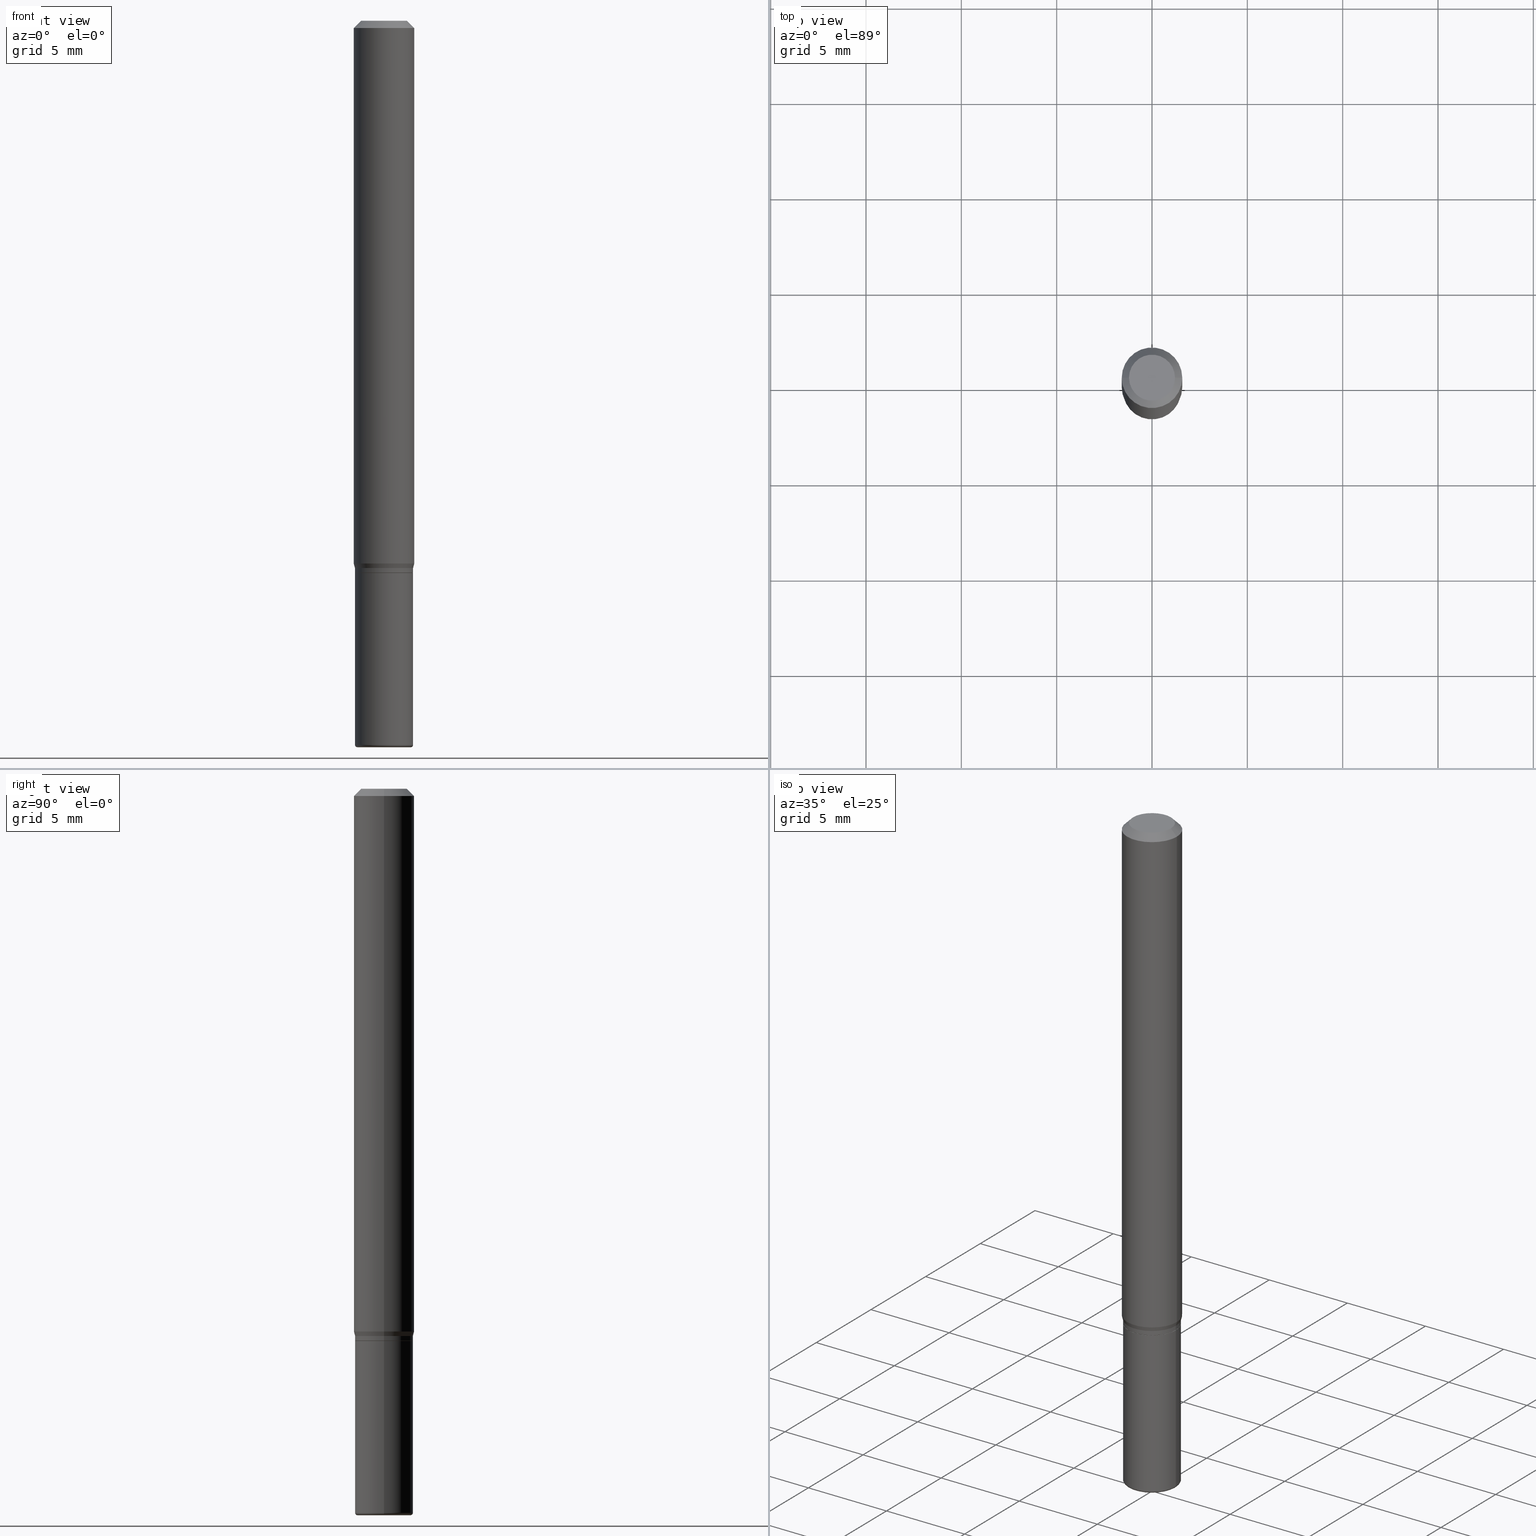
[diagram: canonical four-view strip — front | top / right | iso, engineering-drawing reading convention]
A machine part, canonical four-view strip (front | top / right | iso — engineering-drawing reading convention). The complete STEP part file that produces these views, byte-faithful:
ISO-10303-21;
HEADER;
FILE_DESCRIPTION (( 'STEP AP203' ),
    '1' );
FILE_NAME ('09257.STEP',
    '2024-03-01T00:06:09',
    ( '' ),
    ( '' ),
    'SwSTEP 2.0',
    'SolidWorks 2023',
    '' );
FILE_SCHEMA (( 'CONFIG_CONTROL_DESIGN' ));
ENDSEC;

DATA;
#1 = DIRECTION ( 'NONE',  ( -2.445468806185136597E-29, 3.491481338843145583E-15, 1.000000000000000000 ) ) ;
#2 = AXIS2_PLACEMENT_3D ( 'NONE', #279, #440, #316 ) ;
#3 = TOROIDAL_SURFACE ( 'NONE', #384, 0.05500000000000000028, 0.005000000000000177046 ) ;
#4 = APPROVAL_DATE_TIME ( #89, #401 ) ;
#5 = DIRECTION ( 'NONE',  ( 1.000000000000000000, -6.982962677686265922E-15, 4.876176775795935793E-29 ) ) ;
#6 = ORIENTED_EDGE ( 'NONE', *, *, #229, .F. ) ;
#7 = EDGE_CURVE ( 'NONE', #34, #405, #323, .T. ) ;
#8 = CARTESIAN_POINT ( 'NONE',  ( -0.06000000000000007411, 4.263256414560606381E-16, -2.951361054152947267E-30 ) ) ;
#9 = MANIFOLD_SOLID_BREP ( 'Body-Move/Copy2[1]', #79 ) ;
#10 = CIRCLE ( 'NONE', #514, 0.06250000000000000000 ) ;
#11 = CARTESIAN_POINT ( 'NONE',  ( 0.04750000000000000749, -4.035134999187568762E-16, 2.731847993664288856E-16 ) ) ;
#12 = LOCAL_TIME ( 19, 6, 9.000000000000000000, #445 ) ;
#13 = EDGE_CURVE ( 'NONE', #200, #102, #367, .T. ) ;
#14 = LINE ( 'NONE', #336, #99 ) ;
#15 = EDGE_LOOP ( 'NONE', ( #265, #498 ) ) ;
#16 = CARTESIAN_POINT ( 'NONE',  ( 3.582686580359767159E-29, -5.359686688179454114E-15, -1.500000000000000444 ) ) ;
#17 = EDGE_LOOP ( 'NONE', ( #434, #302, #222, #228 ) ) ;
#18 = DIRECTION ( 'NONE',  ( -1.000000000000000000, 6.982962677686265922E-15, -4.876176775795935793E-29 ) ) ;
#19 = AXIS2_PLACEMENT_3D ( 'NONE', #208, #365, #90 ) ;
#20 = ORIENTED_EDGE ( 'NONE', *, *, #196, .T. ) ;
#21 = LOCAL_TIME ( 19, 6, 9.000000000000000000, #207 ) ;
#22 = EDGE_CURVE ( 'NONE', #405, #383, #194, .T. ) ;
#23 = CARTESIAN_POINT ( 'NONE',  ( 0.05500000000000000028, -5.603827548843247337E-15, -1.495000000000000107 ) ) ;
#24 = ORIENTED_EDGE ( 'NONE', *, *, #423, .T. ) ;
#25 = CARTESIAN_POINT ( 'NONE',  ( 2.786611704647963748E-29, -3.978542985611765194E-15, -1.139500000000000179 ) ) ;
#26 = ORIENTED_EDGE ( 'NONE', *, *, #178, .T. ) ;
#27 = ADVANCED_FACE ( 'NONE', ( #284 ), #239, .T. ) ;
#28 = CARTESIAN_POINT ( 'NONE',  ( 2.787834439051055989E-29, -3.980288726281186698E-15, -1.140000000000000124 ) ) ;
#29 = CARTESIAN_POINT ( 'NONE',  ( 3.655975865246779122E-29, -5.219764601570503141E-15, -1.495000000000000107 ) ) ;
#30 = CIRCLE ( 'NONE', #391, 0.005000000000000177046 ) ;
#31 = AXIS2_PLACEMENT_3D ( 'NONE', #370, #449, #364 ) ;
#32 = SECURITY_CLASSIFICATION ( '', '', #369 ) ;
#33 =( CONVERSION_BASED_UNIT ( 'INCH', #148 ) LENGTH_UNIT ( ) NAMED_UNIT ( #55 ) );
#34 = VERTEX_POINT ( 'NONE', #355 ) ;
#35 = DIRECTION ( 'NONE',  ( 1.000000000000000000, 0.000000000000000000, 0.000000000000000000 ) ) ;
#36 = DIRECTION ( 'NONE',  ( 1.000000000000000000, -6.982962677686268288E-15, 0.000000000000000000 ) ) ;
#37 = DIRECTION ( 'NONE',  ( -2.445468806185136597E-29, 3.491481338843145583E-15, 1.000000000000000000 ) ) ;
#38 = EDGE_LOOP ( 'NONE', ( #362, #84, #119, #282 ) ) ;
#39 = AXIS2_PLACEMENT_3D ( 'NONE', #301, #454, #503 ) ;
#40 = EDGE_CURVE ( 'NONE', #377, #200, #30, .T. ) ;
#41 = CARTESIAN_POINT ( 'NONE',  ( 2.763379750989205565E-29, -3.945373912892755838E-15, -1.130000000000000338 ) ) ;
#42 = SHAPE_DEFINITION_REPRESENTATION ( #292, #379 ) ;
#43 = DIRECTION ( 'NONE',  ( -2.445468806185136597E-29, 3.491481338843145583E-15, 1.000000000000000000 ) ) ;
#44 = EDGE_CURVE ( 'NONE', #102, #347, #398, .T. ) ;
#45 = DIRECTION ( 'NONE',  ( -2.445468806185136877E-29, 3.491481338843145188E-15, 1.000000000000000000 ) ) ;
#46 = ORIENTED_EDGE ( 'NONE', *, *, #408, .F. ) ;
#47 = CIRCLE ( 'NONE', #333, 0.04750000000000000749 ) ;
#48 = APPROVAL_DATE_TIME ( #250, #166 ) ;
#49 = PRODUCT_DEFINITION_FORMATION_WITH_SPECIFIED_SOURCE ( 'ANY', '', #448, .NOT_KNOWN. ) ;
#50 = DIRECTION ( 'NONE',  ( 1.000000000000000000, -6.982962677686262766E-15, 0.000000000000000000 ) ) ;
#51 = PERSON_AND_ORGANIZATION ( #173, #126 ) ;
#52 = DIRECTION ( 'NONE',  ( 1.000000000000000000, -6.982962677686265133E-15, 0.000000000000000000 ) ) ;
#53 = APPROVAL_ROLE ( '' ) ;
#54 = FACE_OUTER_BOUND ( 'NONE', #139, .T. ) ;
#55 = DIMENSIONAL_EXPONENTS ( 1.000000000000000000, 0.000000000000000000, 0.000000000000000000, 0.000000000000000000, 0.000000000000000000, 0.000000000000000000, 0.000000000000000000 ) ;
#56 = CARTESIAN_POINT ( 'NONE',  ( 0.05950000000000009448, -4.395775005603519536E-15, -1.140000000000000124 ) ) ;
#57 = CC_DESIGN_PERSON_AND_ORGANIZATION_ASSIGNMENT ( #51, #162, ( #49 ) ) ;
#58 = DIRECTION ( 'NONE',  ( 1.000000000000000000, -6.982962677686266711E-15, 0.000000000000000000 ) ) ;
#59 = ORIENTED_EDGE ( 'NONE', *, *, #204, .F. ) ;
#60 = DIRECTION ( 'NONE',  ( -1.000000000000000000, 6.982962677686266711E-15, 0.000000000000000000 ) ) ;
#61 = EDGE_CURVE ( 'NONE', #102, #200, #165, .T. ) ;
#62 = EDGE_LOOP ( 'NONE', ( #400, #66, #237, #314 ) ) ;
#63 = CARTESIAN_POINT ( 'NONE',  ( -0.05499999999999999334, -4.819931231855553084E-15, -1.500000000000000444 ) ) ;
#64 = CIRCLE ( 'NONE', #201, 0.06000000000000009492 ) ;
#65 = CC_DESIGN_SECURITY_CLASSIFICATION ( #32, ( #49 ) ) ;
#66 = ORIENTED_EDGE ( 'NONE', *, *, #356, .T. ) ;
#67 = EDGE_CURVE ( 'NONE', #487, #460, #456, .T. ) ;
#68 = CC_DESIGN_APPROVAL ( #197, ( #49 ) ) ;
#69 = DIRECTION ( 'NONE',  ( -2.445468806185136597E-29, 3.491481338843145583E-15, 1.000000000000000000 ) ) ;
#70 = ORIENTED_EDGE ( 'NONE', *, *, #44, .T. ) ;
#71 = DIRECTION ( 'NONE',  ( 1.000000000000000000, -6.982962677686266711E-15, 4.876176775795936353E-29 ) ) ;
#72 = DIRECTION ( 'NONE',  ( -1.000000000000000000, 7.105427357601061812E-15, 0.000000000000000000 ) ) ;
#73 = DESIGN_CONTEXT ( 'detailed design', #249, 'design' ) ;
#74 = EDGE_CURVE ( 'NONE', #347, #107, #348, .T. ) ;
#75 = CARTESIAN_POINT ( 'NONE',  ( 0.000000000000000000, 0.000000000000000000, 0.000000000000000000 ) ) ;
#76 = PRODUCT_RELATED_PRODUCT_CATEGORY ( 'detail', '', ( #448 ) ) ;
#77 = ORIENTED_EDGE ( 'NONE', *, *, #22, .F. ) ;
#78 = AXIS2_PLACEMENT_3D ( 'NONE', #114, #435, #36 ) ;
#79 = CLOSED_SHELL ( 'NONE', ( #289, #220, #293, #169, #267, #350 ) ) ;
#80 = CARTESIAN_POINT ( 'NONE',  ( 0.05950000000000009448, -4.395775005603519536E-15, -1.140000000000000124 ) ) ;
#81 = VERTEX_POINT ( 'NONE', #198 ) ;
#82 =( NAMED_UNIT ( * ) PLANE_ANGLE_UNIT ( ) SI_UNIT ( $, .RADIAN. ) );
#83 = DIRECTION ( 'NONE',  ( -2.445468806185136877E-29, 3.491481338843145188E-15, 1.000000000000000000 ) ) ;
#84 = ORIENTED_EDGE ( 'NONE', *, *, #450, .T. ) ;
#85 = CC_DESIGN_PERSON_AND_ORGANIZATION_ASSIGNMENT ( #130, #214, ( #246 ) ) ;
#86 = CIRCLE ( 'NONE', #393, 0.04750000000000000749 ) ;
#87 = DATE_TIME_ROLE ( 'creation_date' ) ;
#88 = DIRECTION ( 'NONE',  ( 2.438088387897960049E-29, -3.491481338843145188E-15, -1.000000000000000000 ) ) ;
#89 = DATE_AND_TIME ( #447, #101 ) ;
#90 = DIRECTION ( 'NONE',  ( 1.000000000000000000, -6.982962677686265922E-15, 4.876176775795935793E-29 ) ) ;
#91 = CARTESIAN_POINT ( 'NONE',  ( 2.740563216406686834E-29, -3.912797948517154069E-15, -1.120669872981078452 ) ) ;
#92 = ORIENTED_EDGE ( 'NONE', *, *, #7, .F. ) ;
#93 = AXIS2_PLACEMENT_3D ( 'NONE', #304, #270, #307 ) ;
#94 = CONICAL_SURFACE ( 'NONE', #375, 0.06000000000000006717, 0.2617993877991523499 ) ;
#95 = DIRECTION ( 'NONE',  ( -2.445468806185136597E-29, 3.491481338843145583E-15, 1.000000000000000000 ) ) ;
#96 = DIRECTION ( 'NONE',  ( 1.000000000000000000, -6.982962677686263555E-15, 4.883557194083111780E-29 ) ) ;
#97 = DIRECTION ( 'NONE',  ( -2.445468806185136597E-29, 3.491481338843145583E-15, 1.000000000000000000 ) ) ;
#98 = AXIS2_PLACEMENT_3D ( 'NONE', #473, #153, #116 ) ;
#99 = VECTOR ( 'NONE', #138, 39.37007874015748143 ) ;
#100 = CARTESIAN_POINT ( 'NONE',  ( -0.06000000000000006717, -3.493878505051893006E-15, -1.130000000000000338 ) ) ;
#101 = LOCAL_TIME ( 19, 6, 9.000000000000000000, #132 ) ;
#102 = VERTEX_POINT ( 'NONE', #157 ) ;
#103 = EDGE_CURVE ( 'NONE', #396, #509, #321, .T. ) ;
#104 = DIRECTION ( 'NONE',  ( 1.000000000000000000, -6.982962677686265922E-15, 4.876176775795935793E-29 ) ) ;
#105 = ORIENTED_EDGE ( 'NONE', *, *, #340, .F. ) ;
#106 = DIRECTION ( 'NONE',  ( -2.445468806185136597E-29, 3.491481338843145583E-15, 1.000000000000000000 ) ) ;
#107 = VERTEX_POINT ( 'NONE', #129 ) ;
#108 = DIRECTION ( 'NONE',  ( 2.445468806185136597E-29, -3.491481338843145583E-15, -1.000000000000000000 ) ) ;
#109 = VECTOR ( 'NONE', #218, 39.37007874015748143 ) ;
#110 = ORIENTED_EDGE ( 'NONE', *, *, #274, .F. ) ;
#111 = DIRECTION ( 'NONE',  ( 1.000000000000000000, -6.982962677686265133E-15, 0.000000000000000000 ) ) ;
#112 = ORIENTED_EDGE ( 'NONE', *, *, #463, .T. ) ;
#113 = APPLICATION_CONTEXT ( 'configuration controlled 3d designs of mechanical parts and assemblies' ) ;
#114 = CARTESIAN_POINT ( 'NONE',  ( 2.787834439051055989E-29, -3.980288726281186698E-15, -1.140000000000000124 ) ) ;
#115 = FACE_OUTER_BOUND ( 'NONE', #479, .T. ) ;
#116 = DIRECTION ( 'NONE',  ( 1.000000000000000000, -6.982962677686263555E-15, 0.000000000000000000 ) ) ;
#117 = CLOSED_SHELL ( 'NONE', ( #27, #260, #372, #233, #488, #135, #471, #495, #140, #300, #283, #508 ) ) ;
#118 = AXIS2_PLACEMENT_3D ( 'NONE', #472, #313, #111 ) ;
#119 = ORIENTED_EDGE ( 'NONE', *, *, #418, .T. ) ;
#120 = DIRECTION ( 'NONE',  ( -0.7071067811865479058, 2.468850131082261005E-15, -0.7071067811865471286 ) ) ;
#121 = CC_DESIGN_PERSON_AND_ORGANIZATION_ASSIGNMENT ( #354, #238, ( #448 ) ) ;
#122 = ORIENTED_EDGE ( 'NONE', *, *, #408, .T. ) ;
#123 = PERSON_AND_ORGANIZATION ( #173, #126 ) ;
#124 = DIRECTION ( 'NONE',  ( 7.105427357601001859E-15, 1.000000000000000000, -3.491481338843145583E-15 ) ) ;
#125 = VECTOR ( 'NONE', #45, 39.37007874015748143 ) ;
#126 = ORGANIZATION ( 'UNSPECIFIED', 'UNSPECIFIED', '' ) ;
#127 = AXIS2_PLACEMENT_3D ( 'NONE', #29, #161, #443 ) ;
#128 = APPROVAL_DATE_TIME ( #160, #197 ) ;
#129 = CARTESIAN_POINT ( 'NONE',  ( -0.05999999999999999778, -4.173701022469784429E-15, -1.140000000000000124 ) ) ;
#130 = PERSON_AND_ORGANIZATION ( #173, #126 ) ;
#131 = DIRECTION ( 'NONE',  ( 1.000000000000000000, -6.982962677686263555E-15, 0.000000000000000000 ) ) ;
#132 = COORDINATED_UNIVERSAL_TIME_OFFSET ( 5, 0, .BEHIND. ) ;
#133 = LINE ( 'NONE', #484, #125 ) ;
#134 = CALENDAR_DATE ( 2024, 29, 2 ) ;
#135 = ADVANCED_FACE ( 'NONE', ( #54 ), #422, .T. ) ;
#136 = FACE_OUTER_BOUND ( 'NONE', #186, .T. ) ;
#137 = CARTESIAN_POINT ( 'NONE',  ( 3.668203209277706016E-29, -5.237222008264719754E-15, -1.500000000000000444 ) ) ;
#138 = DIRECTION ( 'NONE',  ( -2.445468806185136877E-29, 3.491481338843145188E-15, 1.000000000000000000 ) ) ;
#139 = EDGE_LOOP ( 'NONE', ( #46, #20, #308, #411 ) ) ;
#140 = ADVANCED_FACE ( 'NONE', ( #295 ), #420, .F. ) ;
#141 = CIRCLE ( 'NONE', #209, 0.06250000000000000000 ) ;
#142 = CARTESIAN_POINT ( 'NONE',  ( -0.06250000000000000000, 3.840629472727455270E-16, -0.01499999999999970281 ) ) ;
#143 = ORIENTED_EDGE ( 'NONE', *, *, #340, .T. ) ;
#144 = PLANE ( 'NONE',  #39 ) ;
#145 = ORIENTED_EDGE ( 'NONE', *, *, #438, .T. ) ;
#146 = CARTESIAN_POINT ( 'NONE',  ( 3.668203209277632395E-31, -5.237222008264614861E-17, -0.01499999999999970281 ) ) ;
#147 = ORIENTED_EDGE ( 'NONE', *, *, #450, .F. ) ;
#148 = LENGTH_MEASURE_WITH_UNIT ( LENGTH_MEASURE( 0.02539999999999999897 ), #441 );
#149 = VECTOR ( 'NONE', #170, 39.37007874015748143 ) ;
#150 = ORIENTED_EDGE ( 'NONE', *, *, #380, .F. ) ;
#151 = VECTOR ( 'NONE', #195, 39.37007874015748143 ) ;
#152 = CARTESIAN_POINT ( 'NONE',  ( 0.06250000000000000000, -4.888073874380378612E-16, -0.01499999999999970281 ) ) ;
#153 = DIRECTION ( 'NONE',  ( -2.445468806185136597E-29, 3.491481338843145583E-15, 1.000000000000000000 ) ) ;
#154 = LINE ( 'NONE', #506, #192 ) ;
#155 = DIRECTION ( 'NONE',  ( 1.000000000000000000, -6.982962677686268288E-15, 0.000000000000000000 ) ) ;
#156 = APPLICATION_PROTOCOL_DEFINITION ( 'international standard', 'config_control_design', 1994, #113 ) ;
#157 = CARTESIAN_POINT ( 'NONE',  ( 0.06000000000000017819, -5.638742362231680564E-15, -1.495000000000000107 ) ) ;
#158 = CYLINDRICAL_SURFACE ( 'NONE', #286, 0.06250000000000000000 ) ;
#159 = ORIENTED_EDGE ( 'NONE', *, *, #61, .T. ) ;
#160 = DATE_AND_TIME ( #409, #242 ) ;
#161 = DIRECTION ( 'NONE',  ( -2.445468806185136597E-29, 3.491481338843145583E-15, 1.000000000000000000 ) ) ;
#162 = PERSON_AND_ORGANIZATION_ROLE ( 'design_supplier' ) ;
#163 = CYLINDRICAL_SURFACE ( 'NONE', #457, 0.06000000000000009492 ) ;
#164 = EDGE_CURVE ( 'NONE', #275, #219, #86, .T. ) ;
#165 = CIRCLE ( 'NONE', #98, 0.06000000000000017819 ) ;
#166 = APPROVAL ( #363, 'UNSPECIFIED' ) ;
#167 = PERSON_AND_ORGANIZATION ( #173, #126 ) ;
#168 = DIRECTION ( 'NONE',  ( -2.445468806185136597E-29, 3.491481338843145583E-15, 1.000000000000000000 ) ) ;
#169 = ADVANCED_FACE ( 'NONE', ( #486 ), #163, .T. ) ;
#170 = DIRECTION ( 'NONE',  ( -2.445468806185136877E-29, 3.491481338843145188E-15, 1.000000000000000000 ) ) ;
#171 = APPROVAL_STATUS ( 'not_yet_approved' ) ;
#172 = DIRECTION ( 'NONE',  ( 1.000000000000000000, -6.982962677686263555E-15, 0.000000000000000000 ) ) ;
#173 = PERSON ( 'UNSPECIFIED', 'UNSPECIFIED', 'UNSPECIFIED', ('UNSPECIFIED'), ('UNSPECIFIED'), ('UNSPECIFIED') ) ;
#174 = VECTOR ( 'NONE', #180, 39.37007874015748143 ) ;
#175 = CC_DESIGN_APPROVAL ( #401, ( #246 ) ) ;
#176 = DIRECTION ( 'NONE',  ( 1.000000000000000000, -6.982962677686262766E-15, 0.000000000000000000 ) ) ;
#177 = PLANE ( 'NONE',  #402 ) ;
#178 = EDGE_CURVE ( 'NONE', #396, #464, #10, .T. ) ;
#179 = EDGE_LOOP ( 'NONE', ( #381, #432, #240, #150 ) ) ;
#180 = DIRECTION ( 'NONE',  ( 0.7071067811866199593, -2.468850131083015945E-15, 0.7071067811864750752 ) ) ;
#181 = ORIENTED_EDGE ( 'NONE', *, *, #103, .F. ) ;
#182 = AXIS2_PLACEMENT_3D ( 'NONE', #288, #373, #176 ) ;
#183 = DIRECTION ( 'NONE',  ( -2.445468806185136597E-29, 3.491481338843145583E-15, 1.000000000000000000 ) ) ;
#184 = ORIENTED_EDGE ( 'NONE', *, *, #13, .T. ) ;
#185 = CARTESIAN_POINT ( 'NONE',  ( 4.189777606612038494E-16, 0.05999999999999602179, -1.140000000000000346 ) ) ;
#186 = EDGE_LOOP ( 'NONE', ( #159, #305, #425, #203 ) ) ;
#187 = EDGE_CURVE ( 'NONE', #34, #280, #374, .T. ) ;
#188 = CARTESIAN_POINT ( 'NONE',  ( -0.06000000000000006717, -3.519048271436695347E-15, -1.130000000000000338 ) ) ;
#189 = ORIENTED_EDGE ( 'NONE', *, *, #187, .T. ) ;
#190 = FACE_OUTER_BOUND ( 'NONE', #461, .T. ) ;
#191 = AXIS2_PLACEMENT_3D ( 'NONE', #332, #255, #211 ) ;
#192 = VECTOR ( 'NONE', #281, 39.37007874015748143 ) ;
#193 = DIRECTION ( 'NONE',  ( -2.445468806185136877E-29, 3.491481338843145188E-15, 1.000000000000000000 ) ) ;
#194 = CIRCLE ( 'NONE', #261, 0.06000000000000006717 ) ;
#195 = DIRECTION ( 'NONE',  ( -2.445468806185136877E-29, 3.491481338843145188E-15, 1.000000000000000000 ) ) ;
#196 = EDGE_CURVE ( 'NONE', #383, #405, #366, .T. ) ;
#197 = APPROVAL ( #171, 'UNSPECIFIED' ) ;
#198 = CARTESIAN_POINT ( 'NONE',  ( -0.06250000000000000000, -1.538495874449837169E-15, -0.01499999999999970281 ) ) ;
#199 = DIRECTION ( 'NONE',  ( 1.000000000000000000, -6.982962677686268288E-15, 0.000000000000000000 ) ) ;
#200 = VERTEX_POINT ( 'NONE', #489 ) ;
#201 = AXIS2_PLACEMENT_3D ( 'NONE', #25, #262, #493 ) ;
#202 = LINE ( 'NONE', #403, #466 ) ;
#203 = ORIENTED_EDGE ( 'NONE', *, *, #44, .F. ) ;
#204 = EDGE_CURVE ( 'NONE', #200, #107, #133, .T. ) ;
#205 = APPLICATION_PROTOCOL_DEFINITION ( 'international standard', 'config_control_design', 1994, #249 ) ;
#206 = CARTESIAN_POINT ( 'NONE',  ( -0.04750000000000000749, 3.578768372314221353E-16, 2.731847993664239060E-16 ) ) ;
#207 = COORDINATED_UNIVERSAL_TIME_OFFSET ( 5, 0, .BEHIND. ) ;
#208 = CARTESIAN_POINT ( 'NONE',  ( 0.000000000000000000, 0.000000000000000000, 0.000000000000000000 ) ) ;
#209 = AXIS2_PLACEMENT_3D ( 'NONE', #382, #69, #221 ) ;
#210 = DATE_TIME_ROLE ( 'classification_date' ) ;
#211 = DIRECTION ( 'NONE',  ( 1.000000000000000000, -6.982962677686273810E-15, 0.000000000000000000 ) ) ;
#212 = ORIENTED_EDGE ( 'NONE', *, *, #274, .T. ) ;
#213 = EDGE_CURVE ( 'NONE', #464, #396, #226, .T. ) ;
#214 = PERSON_AND_ORGANIZATION_ROLE ( 'creator' ) ;
#215 = CARTESIAN_POINT ( 'NONE',  ( 3.316907271900976589E-16, 0.04750000000000000749, -2.925296391183627249E-17 ) ) ;
#216 = DIRECTION ( 'NONE',  ( -1.000000000000000000, 6.982962677686265922E-15, -4.876176775795935793E-29 ) ) ;
#217 = TOROIDAL_SURFACE ( 'NONE', #93, 0.05500000000000000028, 0.005000000000000177046 ) ;
#218 = DIRECTION ( 'NONE',  ( -0.7071067811866199593, 7.493145998870616062E-15, 0.7071067811864750752 ) ) ;
#219 = VERTEX_POINT ( 'NONE', #11 ) ;
#220 = ADVANCED_FACE ( 'NONE', ( #136 ), #451, .T. ) ;
#221 = DIRECTION ( 'NONE',  ( 1.000000000000000000, -6.982962677686266711E-15, 0.000000000000000000 ) ) ;
#222 = ORIENTED_EDGE ( 'NONE', *, *, #61, .F. ) ;
#223 = LINE ( 'NONE', #378, #109 ) ;
#224 = EDGE_LOOP ( 'NONE', ( #6, #345, #429, #339 ) ) ;
#225 = AXIS2_PLACEMENT_3D ( 'NONE', #256, #43, #172 ) ;
#226 = CIRCLE ( 'NONE', #182, 0.06250000000000000000 ) ;
#227 = CARTESIAN_POINT ( 'NONE',  ( 0.06000000000000006717, -4.364351673553932471E-15, -1.130000000000000338 ) ) ;
#228 = ORIENTED_EDGE ( 'NONE', *, *, #329, .F. ) ;
#229 = EDGE_CURVE ( 'NONE', #280, #383, #491, .T. ) ;
#230 = DIRECTION ( 'NONE',  ( 1.000000000000000000, -6.982962677686280121E-15, 0.000000000000000000 ) ) ;
#231 = ORIENTED_EDGE ( 'NONE', *, *, #380, .T. ) ;
#232 = DIRECTION ( 'NONE',  ( -2.445468806185136597E-29, 3.491481338843145583E-15, 1.000000000000000000 ) ) ;
#233 = ADVANCED_FACE ( 'NONE', ( #245 ), #492, .T. ) ;
#234 = AXIS2_PLACEMENT_3D ( 'NONE', #137, #330, #131 ) ;
#235 = APPROVAL_PERSON_ORGANIZATION ( #123, #197, #53 ) ;
#236 = ORIENTED_EDGE ( 'NONE', *, *, #517, .T. ) ;
#237 = ORIENTED_EDGE ( 'NONE', *, *, #187, .F. ) ;
#238 = PERSON_AND_ORGANIZATION_ROLE ( 'design_owner' ) ;
#239 = CYLINDRICAL_SURFACE ( 'NONE', #258, 0.06000000000000007411 ) ;
#240 = ORIENTED_EDGE ( 'NONE', *, *, #103, .T. ) ;
#241 = CIRCLE ( 'NONE', #414, 0.05999999999999999778 ) ;
#242 = LOCAL_TIME ( 19, 6, 9.000000000000000000, #406 ) ;
#243 = CALENDAR_DATE ( 2024, 29, 2 ) ;
#244 = CC_DESIGN_PERSON_AND_ORGANIZATION_ASSIGNMENT ( #167, #290, ( #49 ) ) ;
#245 = FACE_OUTER_BOUND ( 'NONE', #502, .T. ) ;
#246 = PRODUCT_DEFINITION ( 'UNKNOWN', '', #49, #73 ) ;
#247 = APPROVAL_ROLE ( '' ) ;
#248 = CARTESIAN_POINT ( 'NONE',  ( 2.763379750989205565E-29, -3.945373912892755838E-15, -1.130000000000000338 ) ) ;
#249 = APPLICATION_CONTEXT ( 'configuration controlled 3d designs of mechanical parts and assemblies' ) ;
#250 = DATE_AND_TIME ( #243, #12 ) ;
#251 = EDGE_CURVE ( 'NONE', #324, #377, #430, .T. ) ;
#252 = CARTESIAN_POINT ( 'NONE',  ( 2.787834439051055989E-29, -3.980288726281186698E-15, -1.140000000000000124 ) ) ;
#253 = AXIS2_PLACEMENT_3D ( 'NONE', #185, #462, #18 ) ;
#254 = AXIS2_PLACEMENT_3D ( 'NONE', #469, #319, #358 ) ;
#255 = DIRECTION ( 'NONE',  ( -2.445468806185136597E-29, 3.491481338843145583E-15, 1.000000000000000000 ) ) ;
#256 = CARTESIAN_POINT ( 'NONE',  ( 3.668203209277706016E-29, -5.237222008264719754E-15, -1.500000000000000444 ) ) ;
#257 = LINE ( 'NONE', #56, #174 ) ;
#258 = AXIS2_PLACEMENT_3D ( 'NONE', #470, #318, #351 ) ;
#259 = AXIS2_PLACEMENT_3D ( 'NONE', #455, #108, #60 ) ;
#260 = ADVANCED_FACE ( 'NONE', ( #291 ), #311, .T. ) ;
#261 = AXIS2_PLACEMENT_3D ( 'NONE', #41, #232, #155 ) ;
#262 = DIRECTION ( 'NONE',  ( -2.445468806185136597E-29, 3.491481338843145583E-15, 1.000000000000000000 ) ) ;
#263 = ORIENTED_EDGE ( 'NONE', *, *, #164, .F. ) ;
#264 = FACE_OUTER_BOUND ( 'NONE', #507, .T. ) ;
#265 = ORIENTED_EDGE ( 'NONE', *, *, #164, .T. ) ;
#266 = PLANE ( 'NONE',  #253 ) ;
#267 = ADVANCED_FACE ( 'NONE', ( #371 ), #3, .T. ) ;
#268 = EDGE_LOOP ( 'NONE', ( #468, #236, #143, #494 ) ) ;
#269 = AXIS2_PLACEMENT_3D ( 'NONE', #215, #88, #216 ) ;
#270 = DIRECTION ( 'NONE',  ( -2.445468806185136597E-29, 3.491481338843145583E-15, 1.000000000000000000 ) ) ;
#271 = ORIENTED_EDGE ( 'NONE', *, *, #67, .F. ) ;
#272 = FACE_OUTER_BOUND ( 'NONE', #224, .T. ) ;
#273 = ORIENTED_EDGE ( 'NONE', *, *, #13, .F. ) ;
#274 = EDGE_CURVE ( 'NONE', #377, #324, #296, .T. ) ;
#275 = VERTEX_POINT ( 'NONE', #206 ) ;
#276 = CC_DESIGN_DATE_AND_TIME_ASSIGNMENT ( #297, #87, ( #246 ) ) ;
#277 = FACE_OUTER_BOUND ( 'NONE', #179, .T. ) ;
#278 = CONICAL_SURFACE ( 'NONE', #259, 0.06250000000000000000, 0.7853981633974488341 ) ;
#279 = CARTESIAN_POINT ( 'NONE',  ( 2.787834439051055989E-29, -3.980288726281186698E-15, -1.140000000000000124 ) ) ;
#280 = VERTEX_POINT ( 'NONE', #459 ) ;
#281 = DIRECTION ( 'NONE',  ( 0.7071067811865479058, -7.319954787623257623E-15, -0.7071067811865471286 ) ) ;
#282 = ORIENTED_EDGE ( 'NONE', *, *, #306, .F. ) ;
#283 = ADVANCED_FACE ( 'NONE', ( #431 ), #436, .T. ) ;
#284 = FACE_OUTER_BOUND ( 'NONE', #512, .T. ) ;
#285 = AXIS2_PLACEMENT_3D ( 'NONE', #23, #501, #230 ) ;
#286 = AXIS2_PLACEMENT_3D ( 'NONE', #75, #37, #476 ) ;
#287 = DATE_AND_TIME ( #416, #21 ) ;
#288 = CARTESIAN_POINT ( 'NONE',  ( 2.740563216406686834E-29, -3.912797948517154069E-15, -1.120669872981078452 ) ) ;
#289 = ADVANCED_FACE ( 'NONE', ( #344 ), #217, .T. ) ;
#290 = PERSON_AND_ORGANIZATION_ROLE ( 'creator' ) ;
#291 = FACE_OUTER_BOUND ( 'NONE', #62, .T. ) ;
#292 = PRODUCT_DEFINITION_SHAPE ( 'NONE', 'NONE',  #246 ) ;
#293 = ADVANCED_FACE ( 'NONE', ( #426 ), #266, .F. ) ;
#294 = PERSON_AND_ORGANIZATION_ROLE ( 'classification_officer' ) ;
#295 = FACE_OUTER_BOUND ( 'NONE', #15, .T. ) ;
#296 = CIRCLE ( 'NONE', #225, 0.05499999999999999334 ) ;
#297 = DATE_AND_TIME ( #134, #437 ) ;
#298 = CARTESIAN_POINT ( 'NONE',  ( 3.655975865246779122E-29, -5.219764601570503141E-15, -1.495000000000000107 ) ) ;
#299 = DIRECTION ( 'NONE',  ( -0.2588190451025235705, 5.211531920934563664E-15, 0.9659258262890674240 ) ) ;
#300 = ADVANCED_FACE ( 'NONE', ( #264 ), #144, .F. ) ;
#301 = CARTESIAN_POINT ( 'NONE',  ( 2.787834439051055989E-29, -3.980288726281186698E-15, -1.140000000000000124 ) ) ;
#302 = ORIENTED_EDGE ( 'NONE', *, *, #40, .T. ) ;
#303 = CIRCLE ( 'NONE', #285, 0.005000000000000177046 ) ;
#304 = CARTESIAN_POINT ( 'NONE',  ( 3.655975865246779122E-29, -5.219764601570503141E-15, -1.495000000000000107 ) ) ;
#305 = ORIENTED_EDGE ( 'NONE', *, *, #204, .T. ) ;
#306 = EDGE_CURVE ( 'NONE', #280, #34, #64, .T. ) ;
#307 = DIRECTION ( 'NONE',  ( 1.000000000000000000, -6.982962677686263555E-15, 4.883557194083111780E-29 ) ) ;
#308 = ORIENTED_EDGE ( 'NONE', *, *, #480, .T. ) ;
#309 = FACE_OUTER_BOUND ( 'NONE', #343, .T. ) ;
#310 = ORIENTED_EDGE ( 'NONE', *, *, #251, .F. ) ;
#311 = CONICAL_SURFACE ( 'NONE', #505, 0.05950000000000009448, 0.7853981633975507526 ) ;
#312 = CONICAL_SURFACE ( 'NONE', #254, 0.06250000000000000000, 0.7853981633974488341 ) ;
#313 = DIRECTION ( 'NONE',  ( -2.445468806185136597E-29, 3.491481338843145583E-15, 1.000000000000000000 ) ) ;
#314 = ORIENTED_EDGE ( 'NONE', *, *, #418, .F. ) ;
#315 = DIRECTION ( 'NONE',  ( -2.445468806185136597E-29, 3.491481338843145583E-15, 1.000000000000000000 ) ) ;
#316 = DIRECTION ( 'NONE',  ( 1.000000000000000000, -6.982962677686265133E-15, 0.000000000000000000 ) ) ;
#317 = CARTESIAN_POINT ( 'NONE',  ( 0.000000000000000000, 0.000000000000000000, 0.000000000000000000 ) ) ;
#318 = DIRECTION ( 'NONE',  ( -2.445468806185136597E-29, 3.491481338843145583E-15, 1.000000000000000000 ) ) ;
#319 = DIRECTION ( 'NONE',  ( 2.445468806185136597E-29, -3.491481338843145583E-15, -1.000000000000000000 ) ) ;
#320 = AXIS2_PLACEMENT_3D ( 'NONE', #515, #395, #71 ) ;
#321 = LINE ( 'NONE', #477, #452 ) ;
#322 =( NAMED_UNIT ( * ) SI_UNIT ( $, .STERADIAN. ) SOLID_ANGLE_UNIT ( ) );
#323 = LINE ( 'NONE', #478, #151 ) ;
#324 = VERTEX_POINT ( 'NONE', #376 ) ;
#325 = PERSON_AND_ORGANIZATION ( #173, #126 ) ;
#326 = VECTOR ( 'NONE', #193, 39.37007874015748143 ) ;
#327 = DIRECTION ( 'NONE',  ( 1.000000000000000000, -6.982962677686266711E-15, 4.852736867747365086E-29 ) ) ;
#328 = VECTOR ( 'NONE', #299, 39.37007874015748143 ) ;
#329 = EDGE_CURVE ( 'NONE', #324, #102, #303, .T. ) ;
#330 = DIRECTION ( 'NONE',  ( -2.445468806185136597E-29, 3.491481338843145583E-15, 1.000000000000000000 ) ) ;
#331 = DIRECTION ( 'NONE',  ( 1.000000000000000000, -6.982962677686268288E-15, 0.000000000000000000 ) ) ;
#332 = CARTESIAN_POINT ( 'NONE',  ( 2.786611704647963748E-29, -3.978542985611765194E-15, -1.139500000000000179 ) ) ;
#333 = AXIS2_PLACEMENT_3D ( 'NONE', #388, #183, #346 ) ;
#334 = CC_DESIGN_APPROVAL ( #166, ( #32 ) ) ;
#335 = DIRECTION ( 'NONE',  ( -2.445468806185136597E-29, 3.491481338843145583E-15, 1.000000000000000000 ) ) ;
#336 = CARTESIAN_POINT ( 'NONE',  ( -0.06250000000000000000, 4.440892098500626162E-16, -3.074334431409316114E-30 ) ) ;
#337 = EDGE_LOOP ( 'NONE', ( #427, #112 ) ) ;
#338 = LINE ( 'NONE', #142, #341 ) ;
#339 = ORIENTED_EDGE ( 'NONE', *, *, #196, .F. ) ;
#340 = EDGE_CURVE ( 'NONE', #509, #81, #481, .T. ) ;
#341 = VECTOR ( 'NONE', #120, 39.37007874015748143 ) ;
#342 = CARTESIAN_POINT ( 'NONE',  ( 0.06250000000000000000, -4.349233115872545739E-15, -1.120669872981078452 ) ) ;
#343 = EDGE_LOOP ( 'NONE', ( #310, #110 ) ) ;
#344 = FACE_OUTER_BOUND ( 'NONE', #17, .T. ) ;
#345 = ORIENTED_EDGE ( 'NONE', *, *, #306, .T. ) ;
#346 = DIRECTION ( 'NONE',  ( 1.000000000000000000, -6.982962677686266711E-15, 4.852736867747365086E-29 ) ) ;
#347 = VERTEX_POINT ( 'NONE', #428 ) ;
#348 = CIRCLE ( 'NONE', #78, 0.05999999999999999778 ) ;
#349 = MECHANICAL_CONTEXT ( 'NONE', #113, 'mechanical' ) ;
#350 = ADVANCED_FACE ( 'NONE', ( #309 ), #177, .F. ) ;
#351 = DIRECTION ( 'NONE',  ( 1.000000000000000000, -6.982962677686266711E-15, 4.876176775795936353E-29 ) ) ;
#352 = CARTESIAN_POINT ( 'NONE',  ( 2.763379750989205565E-29, -3.945373912892755838E-15, -1.130000000000000338 ) ) ;
#353 = CARTESIAN_POINT ( 'NONE',  ( 0.06000000000000009492, -4.189777606611766337E-16, 2.925706065477565960E-30 ) ) ;
#354 = PERSON_AND_ORGANIZATION ( #173, #126 ) ;
#355 = CARTESIAN_POINT ( 'NONE',  ( 0.06000000000000009492, -4.397520746272941828E-15, -1.139500000000000179 ) ) ;
#356 = EDGE_CURVE ( 'NONE', #460, #280, #223, .T. ) ;
#357 = AXIS2_PLACEMENT_3D ( 'NONE', #146, #106, #58 ) ;
#358 = DIRECTION ( 'NONE',  ( -1.000000000000000000, 6.982962677686266711E-15, 0.000000000000000000 ) ) ;
#359 = ORIENTED_EDGE ( 'NONE', *, *, #463, .F. ) ;
#360 = MANIFOLD_SOLID_BREP ( 'Body-Move/Copy2[2]', #117 ) ;
#361 = DIRECTION ( 'NONE',  ( 1.000000000000000000, -6.982962677686268288E-15, 0.000000000000000000 ) ) ;
#362 = ORIENTED_EDGE ( 'NONE', *, *, #356, .F. ) ;
#363 = APPROVAL_STATUS ( 'not_yet_approved' ) ;
#364 = DIRECTION ( 'NONE',  ( 1.000000000000000000, -6.982962677686268288E-15, 0.000000000000000000 ) ) ;
#365 = DIRECTION ( 'NONE',  ( -2.445468806185136597E-29, 3.491481338843145583E-15, 1.000000000000000000 ) ) ;
#366 = CIRCLE ( 'NONE', #31, 0.06000000000000006717 ) ;
#367 = CIRCLE ( 'NONE', #127, 0.06000000000000017819 ) ;
#368 = CC_DESIGN_DATE_AND_TIME_ASSIGNMENT ( #287, #210, ( #32 ) ) ;
#369 = SECURITY_CLASSIFICATION_LEVEL ( 'unclassified' ) ;
#370 = CARTESIAN_POINT ( 'NONE',  ( 2.763379750989205565E-29, -3.945373912892755838E-15, -1.130000000000000338 ) ) ;
#371 = FACE_OUTER_BOUND ( 'NONE', #415, .T. ) ;
#372 = ADVANCED_FACE ( 'NONE', ( #496 ), #278, .T. ) ;
#373 = DIRECTION ( 'NONE',  ( -2.445468806185136597E-29, 3.491481338843145583E-15, 1.000000000000000000 ) ) ;
#374 = CIRCLE ( 'NONE', #191, 0.06000000000000009492 ) ;
#375 = AXIS2_PLACEMENT_3D ( 'NONE', #352, #315, #199 ) ;
#376 = CARTESIAN_POINT ( 'NONE',  ( 0.05499999999999999334, -5.621284955537463950E-15, -1.500000000000000444 ) ) ;
#377 = VERTEX_POINT ( 'NONE', #63 ) ;
#378 = CARTESIAN_POINT ( 'NONE',  ( -0.05950000000000009448, -3.557515798503926317E-15, -1.140000000000000124 ) ) ;
#379 = ADVANCED_BREP_SHAPE_REPRESENTATION ( '09257', ( #9, #360, #483 ), #475 ) ;
#380 = EDGE_CURVE ( 'NONE', #81, #509, #141, .T. ) ;
#381 = ORIENTED_EDGE ( 'NONE', *, *, #423, .F. ) ;
#382 = CARTESIAN_POINT ( 'NONE',  ( 3.668203209277632395E-31, -5.237222008264614861E-17, -0.01499999999999970281 ) ) ;
#383 = VERTEX_POINT ( 'NONE', #100 ) ;
#384 = AXIS2_PLACEMENT_3D ( 'NONE', #298, #453, #96 ) ;
#385 = APPROVAL_PERSON_ORGANIZATION ( #325, #166, #485 ) ;
#386 = LINE ( 'NONE', #188, #328 ) ;
#387 = ORIENTED_EDGE ( 'NONE', *, *, #178, .F. ) ;
#388 = CARTESIAN_POINT ( 'NONE',  ( -6.680649051745406845E-45, 9.538196290434862081E-31, 2.731847993664263218E-16 ) ) ;
#389 = ORIENTED_EDGE ( 'NONE', *, *, #229, .T. ) ;
#390 = EDGE_LOOP ( 'NONE', ( #59, #184, #70, #359 ) ) ;
#391 = AXIS2_PLACEMENT_3D ( 'NONE', #518, #124, #72 ) ;
#392 = UNCERTAINTY_MEASURE_WITH_UNIT (LENGTH_MEASURE( 1.000000000000000082E-05 ), #33, 'distance_accuracy_value', 'NONE');
#393 = AXIS2_PLACEMENT_3D ( 'NONE', #410, #95, #327 ) ;
#394 = EDGE_CURVE ( 'NONE', #219, #275, #47, .T. ) ;
#395 = DIRECTION ( 'NONE',  ( -2.445468806185136597E-29, 3.491481338843145583E-15, 1.000000000000000000 ) ) ;
#396 = VERTEX_POINT ( 'NONE', #342 ) ;
#397 = DIRECTION ( 'NONE',  ( 0.000000000000000000, 0.000000000000000000, 1.000000000000000000 ) ) ;
#398 = LINE ( 'NONE', #353, #326 ) ;
#399 = CARTESIAN_POINT ( 'NONE',  ( -0.06250000000000000000, -3.468708738667091453E-15, -1.120669872981078452 ) ) ;
#400 = ORIENTED_EDGE ( 'NONE', *, *, #67, .T. ) ;
#401 = APPROVAL ( #419, 'UNSPECIFIED' ) ;
#402 = AXIS2_PLACEMENT_3D ( 'NONE', #16, #424, #104 ) ;
#403 = CARTESIAN_POINT ( 'NONE',  ( 0.06000000000000006717, -4.364351673553932471E-15, -1.130000000000000338 ) ) ;
#404 = APPROVAL_PERSON_ORGANIZATION ( #412, #401, #247 ) ;
#405 = VERTEX_POINT ( 'NONE', #227 ) ;
#406 = COORDINATED_UNIVERSAL_TIME_OFFSET ( 5, 0, .BEHIND. ) ;
#407 = DIRECTION ( 'NONE',  ( 1.000000000000000000, -6.982962677686266711E-15, 4.876176775795935793E-29 ) ) ;
#408 = EDGE_CURVE ( 'NONE', #383, #464, #386, .T. ) ;
#409 = CALENDAR_DATE ( 2024, 29, 2 ) ;
#410 = CARTESIAN_POINT ( 'NONE',  ( -6.680649051745406845E-45, 9.538196290434862081E-31, 2.731847993664263218E-16 ) ) ;
#411 = ORIENTED_EDGE ( 'NONE', *, *, #213, .F. ) ;
#412 = PERSON_AND_ORGANIZATION ( #173, #126 ) ;
#413 = CARTESIAN_POINT ( 'NONE',  ( 0.000000000000000000, 0.000000000000000000, 0.000000000000000000 ) ) ;
#414 = AXIS2_PLACEMENT_3D ( 'NONE', #28, #467, #361 ) ;
#415 = EDGE_LOOP ( 'NONE', ( #516, #212, #500, #273 ) ) ;
#416 = CALENDAR_DATE ( 2024, 29, 2 ) ;
#417 = DIRECTION ( 'NONE',  ( -2.445468806185136597E-29, 3.491481338843145583E-15, 1.000000000000000000 ) ) ;
#418 = EDGE_CURVE ( 'NONE', #487, #34, #257, .T. ) ;
#419 = APPROVAL_STATUS ( 'not_yet_approved' ) ;
#420 = PLANE ( 'NONE',  #269 ) ;
#421 = CARTESIAN_POINT ( 'NONE',  ( 2.787834439051055989E-29, -3.980288726281186698E-15, -1.140000000000000124 ) ) ;
#422 = CONICAL_SURFACE ( 'NONE', #474, 0.06000000000000006717, 0.2617993877991523499 ) ;
#423 = EDGE_CURVE ( 'NONE', #464, #81, #14, .T. ) ;
#424 = DIRECTION ( 'NONE',  ( -2.438088387897960049E-29, 3.491481338843145188E-15, 1.000000000000000000 ) ) ;
#425 = ORIENTED_EDGE ( 'NONE', *, *, #74, .F. ) ;
#426 = FACE_OUTER_BOUND ( 'NONE', #337, .T. ) ;
#427 = ORIENTED_EDGE ( 'NONE', *, *, #74, .T. ) ;
#428 = CARTESIAN_POINT ( 'NONE',  ( 0.05999999999999999778, -4.399266486942362543E-15, -1.140000000000000124 ) ) ;
#429 = ORIENTED_EDGE ( 'NONE', *, *, #7, .T. ) ;
#430 = CIRCLE ( 'NONE', #234, 0.05499999999999999334 ) ;
#431 = FACE_OUTER_BOUND ( 'NONE', #38, .T. ) ;
#432 = ORIENTED_EDGE ( 'NONE', *, *, #213, .T. ) ;
#433 = DIRECTION ( 'NONE',  ( 0.2588190451025235705, 1.565188264969604415E-15, 0.9659258262890674240 ) ) ;
#434 = ORIENTED_EDGE ( 'NONE', *, *, #251, .T. ) ;
#435 = DIRECTION ( 'NONE',  ( -2.445468806185136597E-29, 3.491481338843145583E-15, 1.000000000000000000 ) ) ;
#436 = CONICAL_SURFACE ( 'NONE', #497, 0.05950000000000009448, 0.7853981633975507526 ) ;
#437 = LOCAL_TIME ( 19, 6, 9.000000000000000000, #490 ) ;
#438 = EDGE_CURVE ( 'NONE', #275, #81, #338, .T. ) ;
#439 = CARTESIAN_POINT ( 'NONE',  ( -0.05950000000000009448, -3.554866571329815116E-15, -1.140000000000000124 ) ) ;
#440 = DIRECTION ( 'NONE',  ( -2.445468806185136597E-29, 3.491481338843145583E-15, 1.000000000000000000 ) ) ;
#441 =( LENGTH_UNIT ( ) NAMED_UNIT ( * ) SI_UNIT ( $, .METRE. ) );
#442 = ORIENTED_EDGE ( 'NONE', *, *, #517, .F. ) ;
#443 = DIRECTION ( 'NONE',  ( 1.000000000000000000, -6.982962677686263555E-15, 0.000000000000000000 ) ) ;
#444 = CARTESIAN_POINT ( 'NONE',  ( 0.000000000000000000, 0.000000000000000000, 0.000000000000000000 ) ) ;
#445 = COORDINATED_UNIVERSAL_TIME_OFFSET ( 5, 0, .BEHIND. ) ;
#446 = DIRECTION ( 'NONE',  ( -2.445468806185136597E-29, 3.491481338843145583E-15, 1.000000000000000000 ) ) ;
#447 = CALENDAR_DATE ( 2024, 29, 2 ) ;
#448 = PRODUCT ( '09257', '09257', '', ( #349 ) ) ;
#449 = DIRECTION ( 'NONE',  ( -2.445468806185136597E-29, 3.491481338843145583E-15, 1.000000000000000000 ) ) ;
#450 = EDGE_CURVE ( 'NONE', #460, #487, #465, .T. ) ;
#451 = CYLINDRICAL_SURFACE ( 'NONE', #19, 0.06000000000000009492 ) ;
#452 = VECTOR ( 'NONE', #83, 39.37007874015748143 ) ;
#453 = DIRECTION ( 'NONE',  ( -2.445468806185136597E-29, 3.491481338843145583E-15, 1.000000000000000000 ) ) ;
#454 = DIRECTION ( 'NONE',  ( -2.438088387897960049E-29, 3.491481338843145188E-15, 1.000000000000000000 ) ) ;
#455 = CARTESIAN_POINT ( 'NONE',  ( 3.668203209277632395E-31, -5.237222008264614861E-17, -0.01499999999999970281 ) ) ;
#456 = CIRCLE ( 'NONE', #2, 0.05950000000000009448 ) ;
#457 = AXIS2_PLACEMENT_3D ( 'NONE', #413, #446, #5 ) ;
#458 = ORIENTED_EDGE ( 'NONE', *, *, #480, .F. ) ;
#459 = CARTESIAN_POINT ( 'NONE',  ( -0.06000000000000009492, -3.552217344155704704E-15, -1.139500000000000179 ) ) ;
#460 = VERTEX_POINT ( 'NONE', #439 ) ;
#461 = EDGE_LOOP ( 'NONE', ( #442, #263, #145, #231 ) ) ;
#462 = DIRECTION ( 'NONE',  ( 2.438088387897960049E-29, -3.491481338843145188E-15, -1.000000000000000000 ) ) ;
#463 = EDGE_CURVE ( 'NONE', #107, #347, #241, .T. ) ;
#464 = VERTEX_POINT ( 'NONE', #399 ) ;
#465 = CIRCLE ( 'NONE', #118, 0.05950000000000009448 ) ;
#466 = VECTOR ( 'NONE', #433, 39.37007874015748143 ) ;
#467 = DIRECTION ( 'NONE',  ( -2.445468806185136597E-29, 3.491481338843145583E-15, 1.000000000000000000 ) ) ;
#468 = ORIENTED_EDGE ( 'NONE', *, *, #394, .F. ) ;
#469 = CARTESIAN_POINT ( 'NONE',  ( 3.668203209277632395E-31, -5.237222008264614861E-17, -0.01499999999999970281 ) ) ;
#470 = CARTESIAN_POINT ( 'NONE',  ( 0.000000000000000000, 0.000000000000000000, 0.000000000000000000 ) ) ;
#471 = ADVANCED_FACE ( 'NONE', ( #277 ), #158, .T. ) ;
#472 = CARTESIAN_POINT ( 'NONE',  ( 2.787834439051055989E-29, -3.980288726281186698E-15, -1.140000000000000124 ) ) ;
#473 = CARTESIAN_POINT ( 'NONE',  ( 3.655975865246779122E-29, -5.219764601570503141E-15, -1.495000000000000107 ) ) ;
#474 = AXIS2_PLACEMENT_3D ( 'NONE', #248, #1, #331 ) ;
#475 =( GEOMETRIC_REPRESENTATION_CONTEXT ( 3 ) GLOBAL_UNCERTAINTY_ASSIGNED_CONTEXT ( ( #392 ) ) GLOBAL_UNIT_ASSIGNED_CONTEXT ( ( #33, #82, #322 ) ) REPRESENTATION_CONTEXT ( 'NONE', 'WORKASPACE' ) );
#476 = DIRECTION ( 'NONE',  ( 1.000000000000000000, -6.982962677686266711E-15, 4.876176775795935793E-29 ) ) ;
#477 = CARTESIAN_POINT ( 'NONE',  ( 0.06250000000000000000, -4.364351673553916694E-16, 3.047610484872459871E-30 ) ) ;
#478 = CARTESIAN_POINT ( 'NONE',  ( 0.06000000000000007411, -4.189777606611765351E-16, 2.925706065477565259E-30 ) ) ;
#479 = EDGE_LOOP ( 'NONE', ( #504, #122, #387, #458 ) ) ;
#480 = EDGE_CURVE ( 'NONE', #405, #396, #202, .T. ) ;
#481 = CIRCLE ( 'NONE', #357, 0.06250000000000000000 ) ;
#482 = PERSON_AND_ORGANIZATION ( #173, #126 ) ;
#483 = AXIS2_PLACEMENT_3D ( 'NONE', #317, #397, #35 ) ;
#484 = CARTESIAN_POINT ( 'NONE',  ( -0.06000000000000009492, 4.263256414560607860E-16, -2.951361054152947967E-30 ) ) ;
#485 = APPROVAL_ROLE ( '' ) ;
#486 = FACE_OUTER_BOUND ( 'NONE', #390, .T. ) ;
#487 = VERTEX_POINT ( 'NONE', #80 ) ;
#488 = ADVANCED_FACE ( 'NONE', ( #115 ), #94, .T. ) ;
#489 = CARTESIAN_POINT ( 'NONE',  ( -0.06000000000000017125, -4.173701022469782852E-15, -1.495000000000000107 ) ) ;
#490 = COORDINATED_UNIVERSAL_TIME_OFFSET ( 5, 0, .BEHIND. ) ;
#491 = LINE ( 'NONE', #8, #149 ) ;
#492 = CYLINDRICAL_SURFACE ( 'NONE', #513, 0.06250000000000000000 ) ;
#493 = DIRECTION ( 'NONE',  ( 1.000000000000000000, -6.982962677686273810E-15, 0.000000000000000000 ) ) ;
#494 = ORIENTED_EDGE ( 'NONE', *, *, #438, .F. ) ;
#495 = ADVANCED_FACE ( 'NONE', ( #190 ), #312, .T. ) ;
#496 = FACE_OUTER_BOUND ( 'NONE', #268, .T. ) ;
#497 = AXIS2_PLACEMENT_3D ( 'NONE', #421, #97, #499 ) ;
#498 = ORIENTED_EDGE ( 'NONE', *, *, #394, .T. ) ;
#499 = DIRECTION ( 'NONE',  ( 1.000000000000000000, -6.982962677686265133E-15, 0.000000000000000000 ) ) ;
#500 = ORIENTED_EDGE ( 'NONE', *, *, #329, .T. ) ;
#501 = DIRECTION ( 'NONE',  ( -6.982962677686266711E-15, -1.000000000000000000, 3.491481338843145583E-15 ) ) ;
#502 = EDGE_LOOP ( 'NONE', ( #26, #24, #105, #181 ) ) ;
#503 = DIRECTION ( 'NONE',  ( 1.000000000000000000, -6.982962677686265922E-15, 4.876176775795935793E-29 ) ) ;
#504 = ORIENTED_EDGE ( 'NONE', *, *, #22, .T. ) ;
#505 = AXIS2_PLACEMENT_3D ( 'NONE', #252, #417, #52 ) ;
#506 = CARTESIAN_POINT ( 'NONE',  ( 0.06250000000000000000, -4.811533449433669144E-16, -0.01499999999999970281 ) ) ;
#507 = EDGE_LOOP ( 'NONE', ( #271, #147 ) ) ;
#508 = ADVANCED_FACE ( 'NONE', ( #272 ), #511, .T. ) ;
#509 = VERTEX_POINT ( 'NONE', #152 ) ;
#510 = CC_DESIGN_PERSON_AND_ORGANIZATION_ASSIGNMENT ( #482, #294, ( #32 ) ) ;
#511 = CYLINDRICAL_SURFACE ( 'NONE', #320, 0.06000000000000007411 ) ;
#512 = EDGE_LOOP ( 'NONE', ( #189, #389, #77, #92 ) ) ;
#513 = AXIS2_PLACEMENT_3D ( 'NONE', #444, #168, #407 ) ;
#514 = AXIS2_PLACEMENT_3D ( 'NONE', #91, #335, #50 ) ;
#515 = CARTESIAN_POINT ( 'NONE',  ( 0.000000000000000000, 0.000000000000000000, 0.000000000000000000 ) ) ;
#516 = ORIENTED_EDGE ( 'NONE', *, *, #40, .F. ) ;
#517 = EDGE_CURVE ( 'NONE', #219, #509, #154, .T. ) ;
#518 = CARTESIAN_POINT ( 'NONE',  ( -0.05500000000000000028, -4.828966096902448481E-15, -1.495000000000000107 ) ) ;
ENDSEC;
END-ISO-10303-21;
